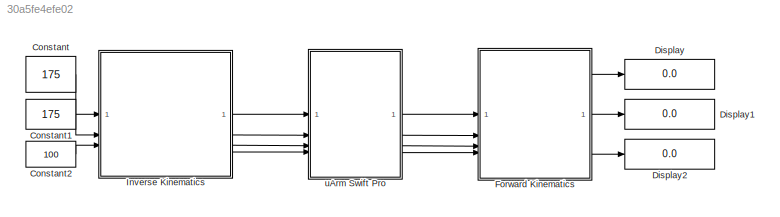
MODEL slx_30a5fe4efe02
KIND model
CONFIG AbsTol = auto
CONFIG EnableMultiTasking = off
CONFIG FixedStep = auto
CONFIG MaxStep = auto
CONFIG MinStep = auto
CONFIG RelTol = 1e-3
CONFIG SampleTimeConstraint = Unconstrained
CONFIG SolverName = VariableStepAuto
CONFIG StartTime = 0.0
CONFIG StopTime = 10.0
BLOCK [Constant] Constant
  Value = 175
BLOCK [Constant] Constant1
  Value = 175
BLOCK [Constant] Constant2
  Value = 100
BLOCK [Display] Display
  Decimation = 1
BLOCK [Display] Display1
  Decimation = 1
BLOCK [Display] Display2
  Decimation = 1
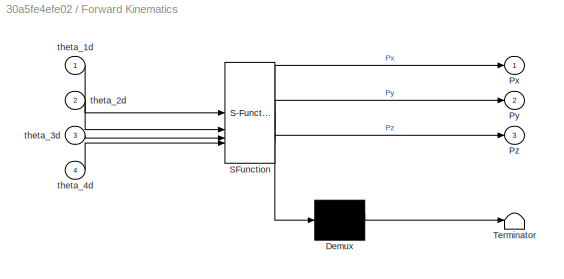
BLOCK [SubSystem] Forward Kinematics
  ErrorFcn = Stateflow.Translate.translate
  PermitHierarchicalResolution = ExplicitOnly
  SFBlockType = MATLAB Function
  TreatAsAtomicUnit = on
BLOCK [Demux] Forward Kinematics/ Demux 
  Outputs = 1
BLOCK [S-Function] Forward Kinematics/ SFunction 
  EnableBusSupport = on
  FunctionName = sf_sfun
  PortCounts = [4 4]
  SFcnIsStateOwnerBlock = off
  SFunctionDeploymentMode = off
  Tag = Stateflow S-Function 2
BLOCK [Terminator] Forward Kinematics/ Terminator 
BLOCK [Outport] Forward Kinematics/Px
  VectorParamsAs1DForOutWhenUnconnected = off
BLOCK [Outport] Forward Kinematics/Py
  Port = 2
BLOCK [Outport] Forward Kinematics/Pz
  Port = 3
BLOCK [Inport] Forward Kinematics/theta_1d
BLOCK [Inport] Forward Kinematics/theta_2d
  Port = 2
BLOCK [Inport] Forward Kinematics/theta_3d
  Port = 3
BLOCK [Inport] Forward Kinematics/theta_4d
  Port = 4
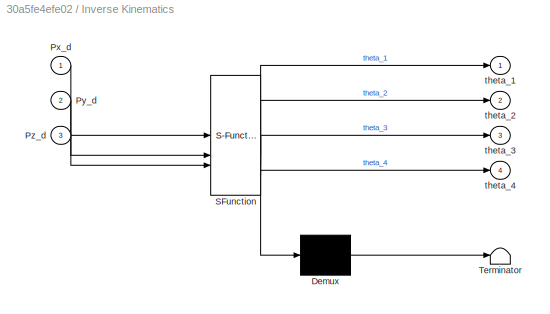
BLOCK [SubSystem] Inverse Kinematics
  ErrorFcn = Stateflow.Translate.translate
  LibrarySourceBlock = simulink/User-Defined\nFunctions/MATLAB Function
  PermitHierarchicalResolution = ExplicitOnly
  SFBlockType = MATLAB Function
  TreatAsAtomicUnit = on
BLOCK [Demux] Inverse Kinematics/ Demux 
  Outputs = 1
BLOCK [S-Function] Inverse Kinematics/ SFunction 
  EnableBusSupport = on
  FunctionName = sf_sfun
  PortCounts = [3 5]
  SFcnIsStateOwnerBlock = off
  SFunctionDeploymentMode = off
  Tag = Stateflow S-Function 1
BLOCK [Terminator] Inverse Kinematics/ Terminator 
BLOCK [Inport] Inverse Kinematics/Px_d
BLOCK [Inport] Inverse Kinematics/Py_d
  Port = 2
BLOCK [Inport] Inverse Kinematics/Pz_d
  Port = 3
BLOCK [Outport] Inverse Kinematics/theta_1
BLOCK [Outport] Inverse Kinematics/theta_2
  Port = 2
BLOCK [Outport] Inverse Kinematics/theta_3
  Port = 3
BLOCK [Outport] Inverse Kinematics/theta_4
  Port = 4
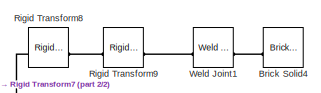
[diagram: uArm Swift Pro - part 1/2, top right region]
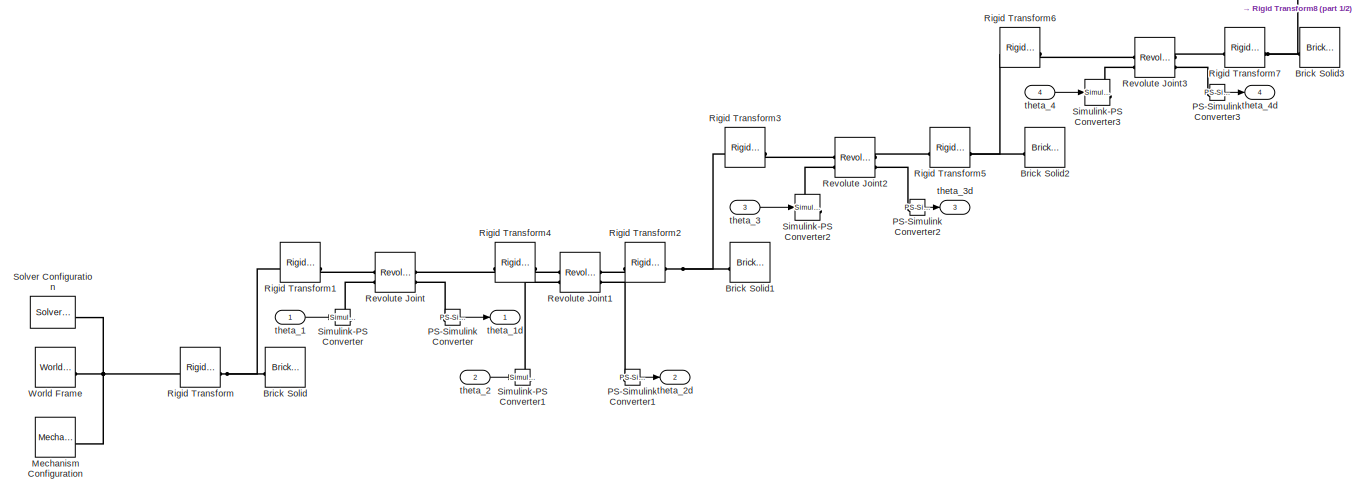
[diagram: uArm Swift Pro - part 2/2, most of the canvas]
BLOCK [SubSystem] uArm Swift Pro
BLOCK [Reference] uArm Swift Pro/Brick Solid  REF=sm_lib/Body Elements/Brick Solid
  SourceBlock = sm_lib/Body Elements/Brick Solid
  SourceType = Brick Solid
BLOCK [Reference] uArm Swift Pro/Brick Solid1  REF=sm_lib/Body Elements/Brick Solid
  SourceBlock = sm_lib/Body Elements/Brick Solid
  SourceType = Brick Solid
BLOCK [Reference] uArm Swift Pro/Brick Solid2  REF=sm_lib/Body Elements/Brick Solid
  SourceBlock = sm_lib/Body Elements/Brick Solid
  SourceType = Brick Solid
BLOCK [Reference] uArm Swift Pro/Brick Solid3  REF=sm_lib/Body Elements/Brick Solid
  SourceBlock = sm_lib/Body Elements/Brick Solid
  SourceType = Brick Solid
BLOCK [Reference] uArm Swift Pro/Brick Solid4  REF=sm_lib/Body Elements/Brick Solid
  SourceBlock = sm_lib/Body Elements/Brick Solid
  SourceType = Brick Solid
BLOCK [Reference] uArm Swift Pro/Mechanism Configuration  REF=sm_lib/Utilities/Mechanism
Configuration
  SourceBlock = sm_lib/Utilities/Mechanism\nConfiguration
  SourceType = Mechanism\nConfiguration
BLOCK [Reference] uArm Swift Pro/PS-Simulink Converter  REF=nesl_utility/PS-Simulink
Converter
  SourceBlock = nesl_utility/PS-Simulink\nConverter
  SourceType = PS-Simulink\nConverter
BLOCK [Reference] uArm Swift Pro/PS-Simulink Converter1  REF=nesl_utility/PS-Simulink
Converter
  SourceBlock = nesl_utility/PS-Simulink\nConverter
  SourceType = PS-Simulink\nConverter
BLOCK [Reference] uArm Swift Pro/PS-Simulink Converter2  REF=nesl_utility/PS-Simulink
Converter
  SourceBlock = nesl_utility/PS-Simulink\nConverter
  SourceType = PS-Simulink\nConverter
BLOCK [Reference] uArm Swift Pro/PS-Simulink Converter3  REF=nesl_utility/PS-Simulink
Converter
  SourceBlock = nesl_utility/PS-Simulink\nConverter
  SourceType = PS-Simulink\nConverter
BLOCK [Reference] uArm Swift Pro/Revolute Joint  REF=sm_lib/Joints/Revolute Joint
  SourceBlock = sm_lib/Joints/Revolute Joint
  SourceType = Revolute Joint
BLOCK [Reference] uArm Swift Pro/Revolute Joint1  REF=sm_lib/Joints/Revolute Joint
  SourceBlock = sm_lib/Joints/Revolute Joint
  SourceType = Revolute Joint
BLOCK [Reference] uArm Swift Pro/Revolute Joint2  REF=sm_lib/Joints/Revolute Joint
  SourceBlock = sm_lib/Joints/Revolute Joint
  SourceType = Revolute Joint
BLOCK [Reference] uArm Swift Pro/Revolute Joint3  REF=sm_lib/Joints/Revolute Joint
  SourceBlock = sm_lib/Joints/Revolute Joint
  SourceType = Revolute Joint
BLOCK [Reference] uArm Swift Pro/Rigid Transform  REF=sm_lib/Frames and
Transforms/Rigid
Transform
  SourceBlock = sm_lib/Frames and\nTransforms/Rigid\nTransform
  SourceType = Rigid\nTransform
BLOCK [Reference] uArm Swift Pro/Rigid Transform1  REF=sm_lib/Frames and
Transforms/Rigid
Transform
  SourceBlock = sm_lib/Frames and\nTransforms/Rigid\nTransform
  SourceType = Rigid\nTransform
BLOCK [Reference] uArm Swift Pro/Rigid Transform2  REF=sm_lib/Frames and
Transforms/Rigid
Transform
  SourceBlock = sm_lib/Frames and\nTransforms/Rigid\nTransform
  SourceType = Rigid\nTransform
BLOCK [Reference] uArm Swift Pro/Rigid Transform3  REF=sm_lib/Frames and
Transforms/Rigid
Transform
  SourceBlock = sm_lib/Frames and\nTransforms/Rigid\nTransform
  SourceType = Rigid\nTransform
BLOCK [Reference] uArm Swift Pro/Rigid Transform4  REF=sm_lib/Frames and
Transforms/Rigid
Transform
  SourceBlock = sm_lib/Frames and\nTransforms/Rigid\nTransform
  SourceType = Rigid\nTransform
BLOCK [Reference] uArm Swift Pro/Rigid Transform5  REF=sm_lib/Frames and
Transforms/Rigid
Transform
  SourceBlock = sm_lib/Frames and\nTransforms/Rigid\nTransform
  SourceType = Rigid\nTransform
BLOCK [Reference] uArm Swift Pro/Rigid Transform6  REF=sm_lib/Frames and
Transforms/Rigid
Transform
  SourceBlock = sm_lib/Frames and\nTransforms/Rigid\nTransform
  SourceType = Rigid\nTransform
BLOCK [Reference] uArm Swift Pro/Rigid Transform7  REF=sm_lib/Frames and
Transforms/Rigid
Transform
  SourceBlock = sm_lib/Frames and\nTransforms/Rigid\nTransform
  SourceType = Rigid\nTransform
BLOCK [Reference] uArm Swift Pro/Rigid Transform8  REF=sm_lib/Frames and
Transforms/Rigid
Transform
  SourceBlock = sm_lib/Frames and\nTransforms/Rigid\nTransform
  SourceType = Rigid\nTransform
BLOCK [Reference] uArm Swift Pro/Rigid Transform9  REF=sm_lib/Frames and
Transforms/Rigid
Transform
  SourceBlock = sm_lib/Frames and\nTransforms/Rigid\nTransform
  SourceType = Rigid\nTransform
BLOCK [Reference] uArm Swift Pro/Simulink-PS Converter  REF=nesl_utility/Simulink-PS
Converter
  SourceBlock = nesl_utility/Simulink-PS\nConverter
  SourceType = Simulink-PS\nConverter
BLOCK [Reference] uArm Swift Pro/Simulink-PS Converter1  REF=nesl_utility/Simulink-PS
Converter
  SourceBlock = nesl_utility/Simulink-PS\nConverter
  SourceType = Simulink-PS\nConverter
BLOCK [Reference] uArm Swift Pro/Simulink-PS Converter2  REF=nesl_utility/Simulink-PS
Converter
  SourceBlock = nesl_utility/Simulink-PS\nConverter
  SourceType = Simulink-PS\nConverter
BLOCK [Reference] uArm Swift Pro/Simulink-PS Converter3  REF=nesl_utility/Simulink-PS
Converter
  SourceBlock = nesl_utility/Simulink-PS\nConverter
  SourceType = Simulink-PS\nConverter
BLOCK [Reference] uArm Swift Pro/Solver Configuration  REF=nesl_utility/Solver
Configuration
  SourceBlock = nesl_utility/Solver\nConfiguration
  SourceType = Solver\nConfiguration
BLOCK [Reference] uArm Swift Pro/Weld Joint1  REF=sm_lib/Joints/Weld Joint
  SourceBlock = sm_lib/Joints/Weld Joint
  SourceType = Weld Joint
BLOCK [Reference] uArm Swift Pro/World Frame  REF=sm_lib/Frames and
Transforms/World Frame
  SourceBlock = sm_lib/Frames and\nTransforms/World Frame
  SourceType = World Frame
BLOCK [Inport] uArm Swift Pro/theta_1
BLOCK [Outport] uArm Swift Pro/theta_1d
BLOCK [Inport] uArm Swift Pro/theta_2
  Port = 2
BLOCK [Outport] uArm Swift Pro/theta_2d
  Port = 2
BLOCK [Inport] uArm Swift Pro/theta_3
  Port = 3
BLOCK [Outport] uArm Swift Pro/theta_3d
  Port = 3
BLOCK [Inport] uArm Swift Pro/theta_4
  Port = 4
BLOCK [Outport] uArm Swift Pro/theta_4d
  Port = 4
LINE Constant1:1 -> Inverse Kinematics:2
LINE Constant2:1 -> Inverse Kinematics:3
LINE Constant:1 -> Inverse Kinematics:1
LINE Forward Kinematics:1 -> Display:1
LINE Forward Kinematics:2 -> Display1:1
LINE Forward Kinematics:3 -> Display2:1
LINE Inverse Kinematics:1 -> uArm Swift Pro:1
LINE Inverse Kinematics:2 -> uArm Swift Pro:2
LINE Inverse Kinematics:3 -> uArm Swift Pro:3
LINE Inverse Kinematics:4 -> uArm Swift Pro:4
LINE uArm Swift Pro/PS-Simulink Converter1:1 -> uArm Swift Pro/theta_2d:1
LINE uArm Swift Pro/PS-Simulink Converter2:1 -> uArm Swift Pro/theta_3d:1
LINE uArm Swift Pro/PS-Simulink Converter3:1 -> uArm Swift Pro/theta_4d:1
LINE uArm Swift Pro/PS-Simulink Converter:1 -> uArm Swift Pro/theta_1d:1
LINE uArm Swift Pro/theta_1:1 -> uArm Swift Pro/Simulink-PS Converter:1
LINE uArm Swift Pro/theta_2:1 -> uArm Swift Pro/Simulink-PS Converter1:1
LINE uArm Swift Pro/theta_3:1 -> uArm Swift Pro/Simulink-PS Converter2:1
LINE uArm Swift Pro/theta_4:1 -> uArm Swift Pro/Simulink-PS Converter3:1
LINE uArm Swift Pro:1 -> Forward Kinematics:1
LINE uArm Swift Pro:2 -> Forward Kinematics:2
LINE uArm Swift Pro:3 -> Forward Kinematics:3
LINE uArm Swift Pro:4 -> Forward Kinematics:4
PNET net1: uArm Swift Pro/Brick Solid1:RConn1 -- uArm Swift Pro/Rigid Transform2:RConn1 -- uArm Swift Pro/Rigid Transform3:LConn1
PNET net2: uArm Swift Pro/Brick Solid2:RConn1 -- uArm Swift Pro/Rigid Transform5:RConn1 -- uArm Swift Pro/Rigid Transform6:LConn1
PNET net3: uArm Swift Pro/Brick Solid3:RConn1 -- uArm Swift Pro/Rigid Transform7:RConn1 -- uArm Swift Pro/Rigid Transform8:LConn1
PLINE uArm Swift Pro/Brick Solid4:RConn1 -- uArm Swift Pro/Weld Joint1:RConn1
PNET net4: uArm Swift Pro/Brick Solid:RConn1 -- uArm Swift Pro/Rigid Transform1:LConn1 -- uArm Swift Pro/Rigid Transform:RConn1
PNET net5: uArm Swift Pro/Mechanism Configuration:RConn1 -- uArm Swift Pro/Rigid Transform:LConn1 -- uArm Swift Pro/Solver Configuration:RConn1 -- uArm Swift Pro/World Frame:RConn1
PLINE uArm Swift Pro/PS-Simulink Converter1:LConn1 -- uArm Swift Pro/Revolute Joint1:RConn2
PLINE uArm Swift Pro/PS-Simulink Converter2:LConn1 -- uArm Swift Pro/Revolute Joint2:RConn2
PLINE uArm Swift Pro/PS-Simulink Converter3:LConn1 -- uArm Swift Pro/Revolute Joint3:RConn2
PLINE uArm Swift Pro/PS-Simulink Converter:LConn1 -- uArm Swift Pro/Revolute Joint:RConn2
PLINE uArm Swift Pro/Revolute Joint1:LConn1 -- uArm Swift Pro/Rigid Transform4:RConn1
PLINE uArm Swift Pro/Revolute Joint1:LConn2 -- uArm Swift Pro/Simulink-PS Converter1:RConn1
PLINE uArm Swift Pro/Revolute Joint1:RConn1 -- uArm Swift Pro/Rigid Transform2:LConn1
PLINE uArm Swift Pro/Revolute Joint2:LConn1 -- uArm Swift Pro/Rigid Transform3:RConn1
PLINE uArm Swift Pro/Revolute Joint2:LConn2 -- uArm Swift Pro/Simulink-PS Converter2:RConn1
PLINE uArm Swift Pro/Revolute Joint2:RConn1 -- uArm Swift Pro/Rigid Transform5:LConn1
PLINE uArm Swift Pro/Revolute Joint3:LConn1 -- uArm Swift Pro/Rigid Transform6:RConn1
PLINE uArm Swift Pro/Revolute Joint3:LConn2 -- uArm Swift Pro/Simulink-PS Converter3:RConn1
PLINE uArm Swift Pro/Revolute Joint3:RConn1 -- uArm Swift Pro/Rigid Transform7:LConn1
PLINE uArm Swift Pro/Revolute Joint:LConn1 -- uArm Swift Pro/Rigid Transform1:RConn1
PLINE uArm Swift Pro/Revolute Joint:LConn2 -- uArm Swift Pro/Simulink-PS Converter:RConn1
PLINE uArm Swift Pro/Revolute Joint:RConn1 -- uArm Swift Pro/Rigid Transform4:LConn1
PLINE uArm Swift Pro/Rigid Transform8:RConn1 -- uArm Swift Pro/Rigid Transform9:LConn1
PLINE uArm Swift Pro/Rigid Transform9:RConn1 -- uArm Swift Pro/Weld Joint1:LConn1
note: PNET lines group multi-terminal physical nets as a canonical sorted terminal list (undirected conserving connections); 2-terminal nets keep the pairwise PLINE form
CHART Inverse Kinematics states=1 transitions=1
  STATE_LABEL 'eML_blk_kernel()'
  STATE_LABEL 'SCRIPT:\nfunction [theta_1, theta_2, theta_3, theta_4] = i(Px_d, Py_d, Pz_d)\n\n%Constants\na_1 = 13.2; a_2 = 142; a_3 = 158.8; a_4 = 44.5;    %Link lengths\nd_1 = 106.1;                              %Link offsets\n\ntheta_1 = atan2d(Py_d,Px_d);\n\nr = sqrt(Px_d^2 + Py_d^2);\n\ns = r - a_1 - a_4;\n\nh = Pz_d - d_1;\n\nl = sqrt(s^2 + h^2);\n\ntheta_3 = -acosd((l^2-a_2^2-a_3^2)/(2*a_2*a_3));\n\nalpha = atan2d(h,s);\n\nb...<+224ch>'
CHART Forward Kinematics states=1 transitions=1
  STATE_LABEL 'eML_blk_kernel()'
  STATE_LABEL 'SCRIPT:\nfunction [Px, Py, Pz] = f(theta_1d, theta_2d, theta_3d, theta_4d)\n\n%Constants\na_1 = 13.2; a_2 = 142; a_3 = 158.8; a_4 = 44.5;    %Link lengths\nd_1 = 106.1;                               %Link offsets\n\n%Convert to degrees\ntheta_1d = rad2deg(theta_1d);\ntheta_2d = rad2deg(theta_2d);\ntheta_3d = rad2deg(theta_3d);\ntheta_4d = rad2deg(theta_4d);\n\n%Frame 1 to world\nT_01 = [cosd(theta_1d) 0 sind(th...<+722ch>'
CHART  states=0 transitions=0
CHART  states=0 transitions=0
